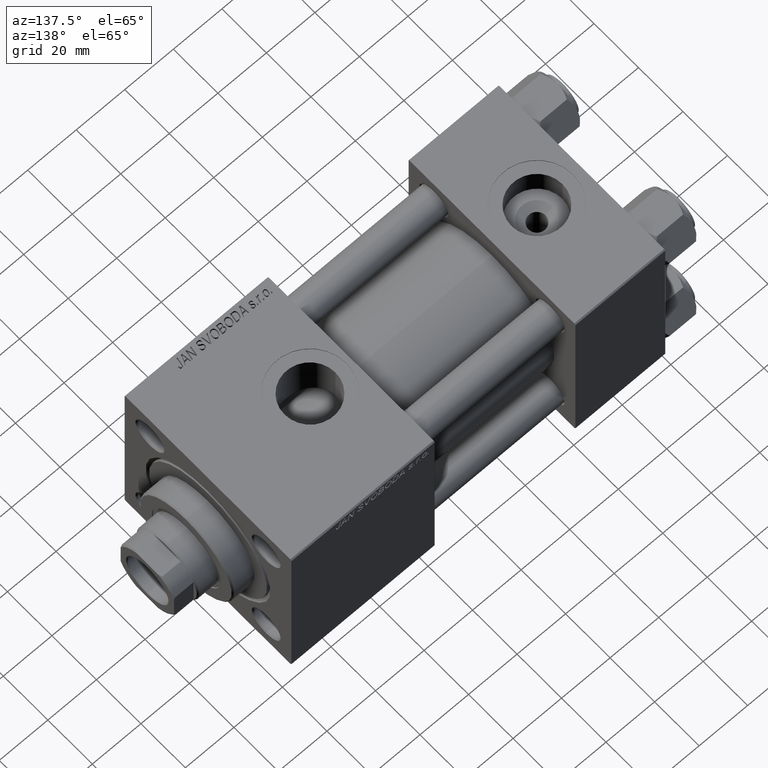
[diagram: clean part render]
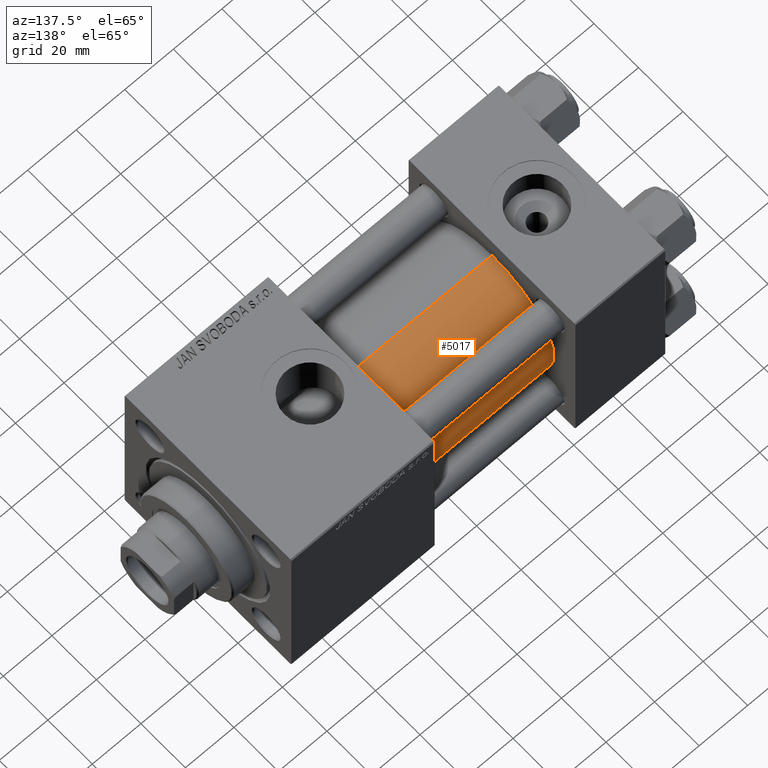
[diagram: same view with one face highlighted and labeled with its STEP entity id]
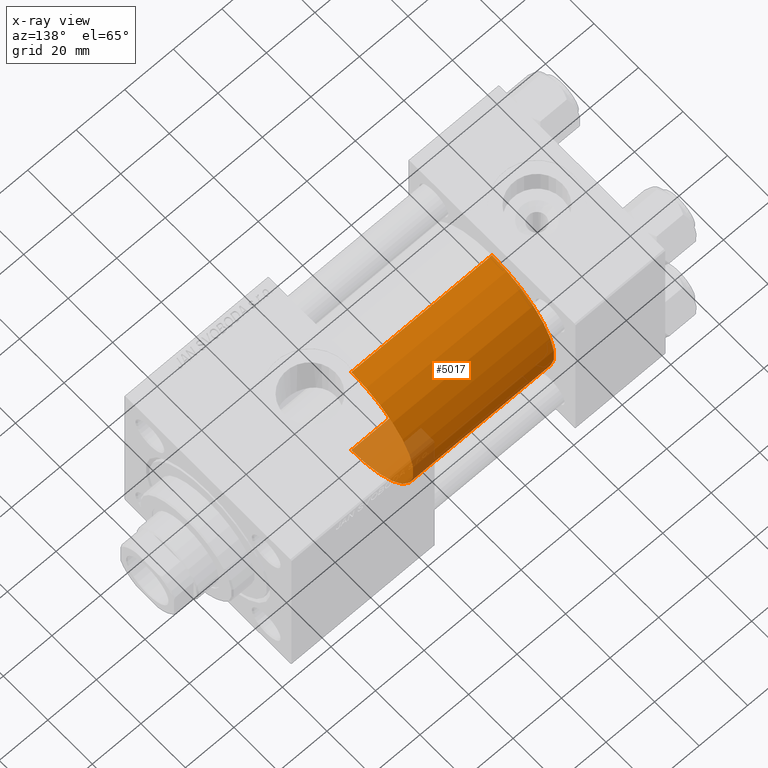
[diagram: x-ray of the same camera — body ghosted, the highlighted face saturated]
A machine part, auxiliary view. The second image highlights one B-rep face of the part: STEP entity #5017.
The next image is the same camera in x-ray: the body ghosted, the highlighted face saturated — about 13% of this face is hidden behind the body in this view.
In plain terms, the highlighted cylindrical surface (partial cylindrical patch) has radius 28 mm, axis along (-1, -0, -0).
Its self-contained STEP definition (entity closure, byte-faithful):
#589 = ORIENTED_EDGE ( 'NONE', *, *, #9379, .F. ) ;
#3390 = CARTESIAN_POINT ( 'NONE',  ( 95.00000000000000000, -2.602085213965210642E-15, 0.000000000000000000 ) ) ;
#3646 = DIRECTION ( 'NONE',  ( 1.000000000000000000, 0.000000000000000000, 0.000000000000000000 ) ) ;
#5017 = ADVANCED_FACE ( 'NONE', ( #23687 ), #24660, .T. ) ;
#5098 = VERTEX_POINT ( 'NONE', #48757 ) ;
#5442 = AXIS2_PLACEMENT_3D ( 'NONE', #42950, #40139, #20866 ) ;
#6029 = CARTESIAN_POINT ( 'NONE',  ( 37.00000000000000000, -2.602085213965210642E-15, 0.000000000000000000 ) ) ;
#6175 = CARTESIAN_POINT ( 'NONE',  ( 95.00000000000000000, 8.269258236473776482E-16, -28.00000000000000000 ) ) ;
#7339 = EDGE_LOOP ( 'NONE', ( #45398, #42248, #15015, #589 ) ) ;
#8823 = VECTOR ( 'NONE', #30280, 1000.000000000000000 ) ;
#9358 = VERTEX_POINT ( 'NONE', #35631 ) ;
#9379 = EDGE_CURVE ( 'NONE', #11997, #5098, #47560, .T. ) ;
#9541 = EDGE_CURVE ( 'NONE', #26271, #9358, #30790, .T. ) ;
#11997 = VERTEX_POINT ( 'NONE', #42435 ) ;
#15015 = ORIENTED_EDGE ( 'NONE', *, *, #23365, .T. ) ;
#16512 = AXIS2_PLACEMENT_3D ( 'NONE', #3390, #3646, #18632 ) ;
#18632 = DIRECTION ( 'NONE',  ( 0.000000000000000000, 0.000000000000000000, -1.000000000000000000 ) ) ;
#20678 = CARTESIAN_POINT ( 'NONE',  ( 95.00000000000000000, -2.602085213965210642E-15, 28.00000000000000000 ) ) ;
#20866 = DIRECTION ( 'NONE',  ( 0.000000000000000000, 0.000000000000000000, 1.000000000000000000 ) ) ;
#22425 = CARTESIAN_POINT ( 'NONE',  ( 95.00000000000000000, 8.269258236473776482E-16, -28.00000000000000000 ) ) ;
#23365 = EDGE_CURVE ( 'NONE', #9358, #5098, #28255, .T. ) ;
#23687 = FACE_OUTER_BOUND ( 'NONE', #7339, .T. ) ;
#24660 = CYLINDRICAL_SURFACE ( 'NONE', #5442, 28.00000000000000000 ) ;
#26271 = VERTEX_POINT ( 'NONE', #6175 ) ;
#27499 = VECTOR ( 'NONE', #46814, 1000.000000000000000 ) ;
#28255 = CIRCLE ( 'NONE', #49344, 28.00000000000000000 ) ;
#28380 = DIRECTION ( 'NONE',  ( 1.000000000000000000, -0.000000000000000000, 0.000000000000000000 ) ) ;
#30280 = DIRECTION ( 'NONE',  ( -1.000000000000000000, -0.000000000000000000, -0.000000000000000000 ) ) ;
#30790 = LINE ( 'NONE', #22425, #8823 ) ;
#35631 = CARTESIAN_POINT ( 'NONE',  ( 37.00000000000000000, 8.269258236473776482E-16, -28.00000000000000000 ) ) ;
#38410 = CIRCLE ( 'NONE', #16512, 28.00000000000000000 ) ;
#39435 = EDGE_CURVE ( 'NONE', #26271, #11997, #38410, .T. ) ;
#40052 = DIRECTION ( 'NONE',  ( 0.000000000000000000, 0.000000000000000000, 1.000000000000000000 ) ) ;
#40139 = DIRECTION ( 'NONE',  ( -1.000000000000000000, -0.000000000000000000, -0.000000000000000000 ) ) ;
#42248 = ORIENTED_EDGE ( 'NONE', *, *, #9541, .T. ) ;
#42435 = CARTESIAN_POINT ( 'NONE',  ( 95.00000000000000000, -2.602085213965210642E-15, 28.00000000000000000 ) ) ;
#42950 = CARTESIAN_POINT ( 'NONE',  ( 95.00000000000000000, -2.602085213965210642E-15, 0.000000000000000000 ) ) ;
#45398 = ORIENTED_EDGE ( 'NONE', *, *, #39435, .F. ) ;
#46814 = DIRECTION ( 'NONE',  ( -1.000000000000000000, -0.000000000000000000, -0.000000000000000000 ) ) ;
#47560 = LINE ( 'NONE', #20678, #27499 ) ;
#48757 = CARTESIAN_POINT ( 'NONE',  ( 37.00000000000000000, -2.602085213965210642E-15, 28.00000000000000000 ) ) ;
#49344 = AXIS2_PLACEMENT_3D ( 'NONE', #6029, #28380, #40052 ) ;